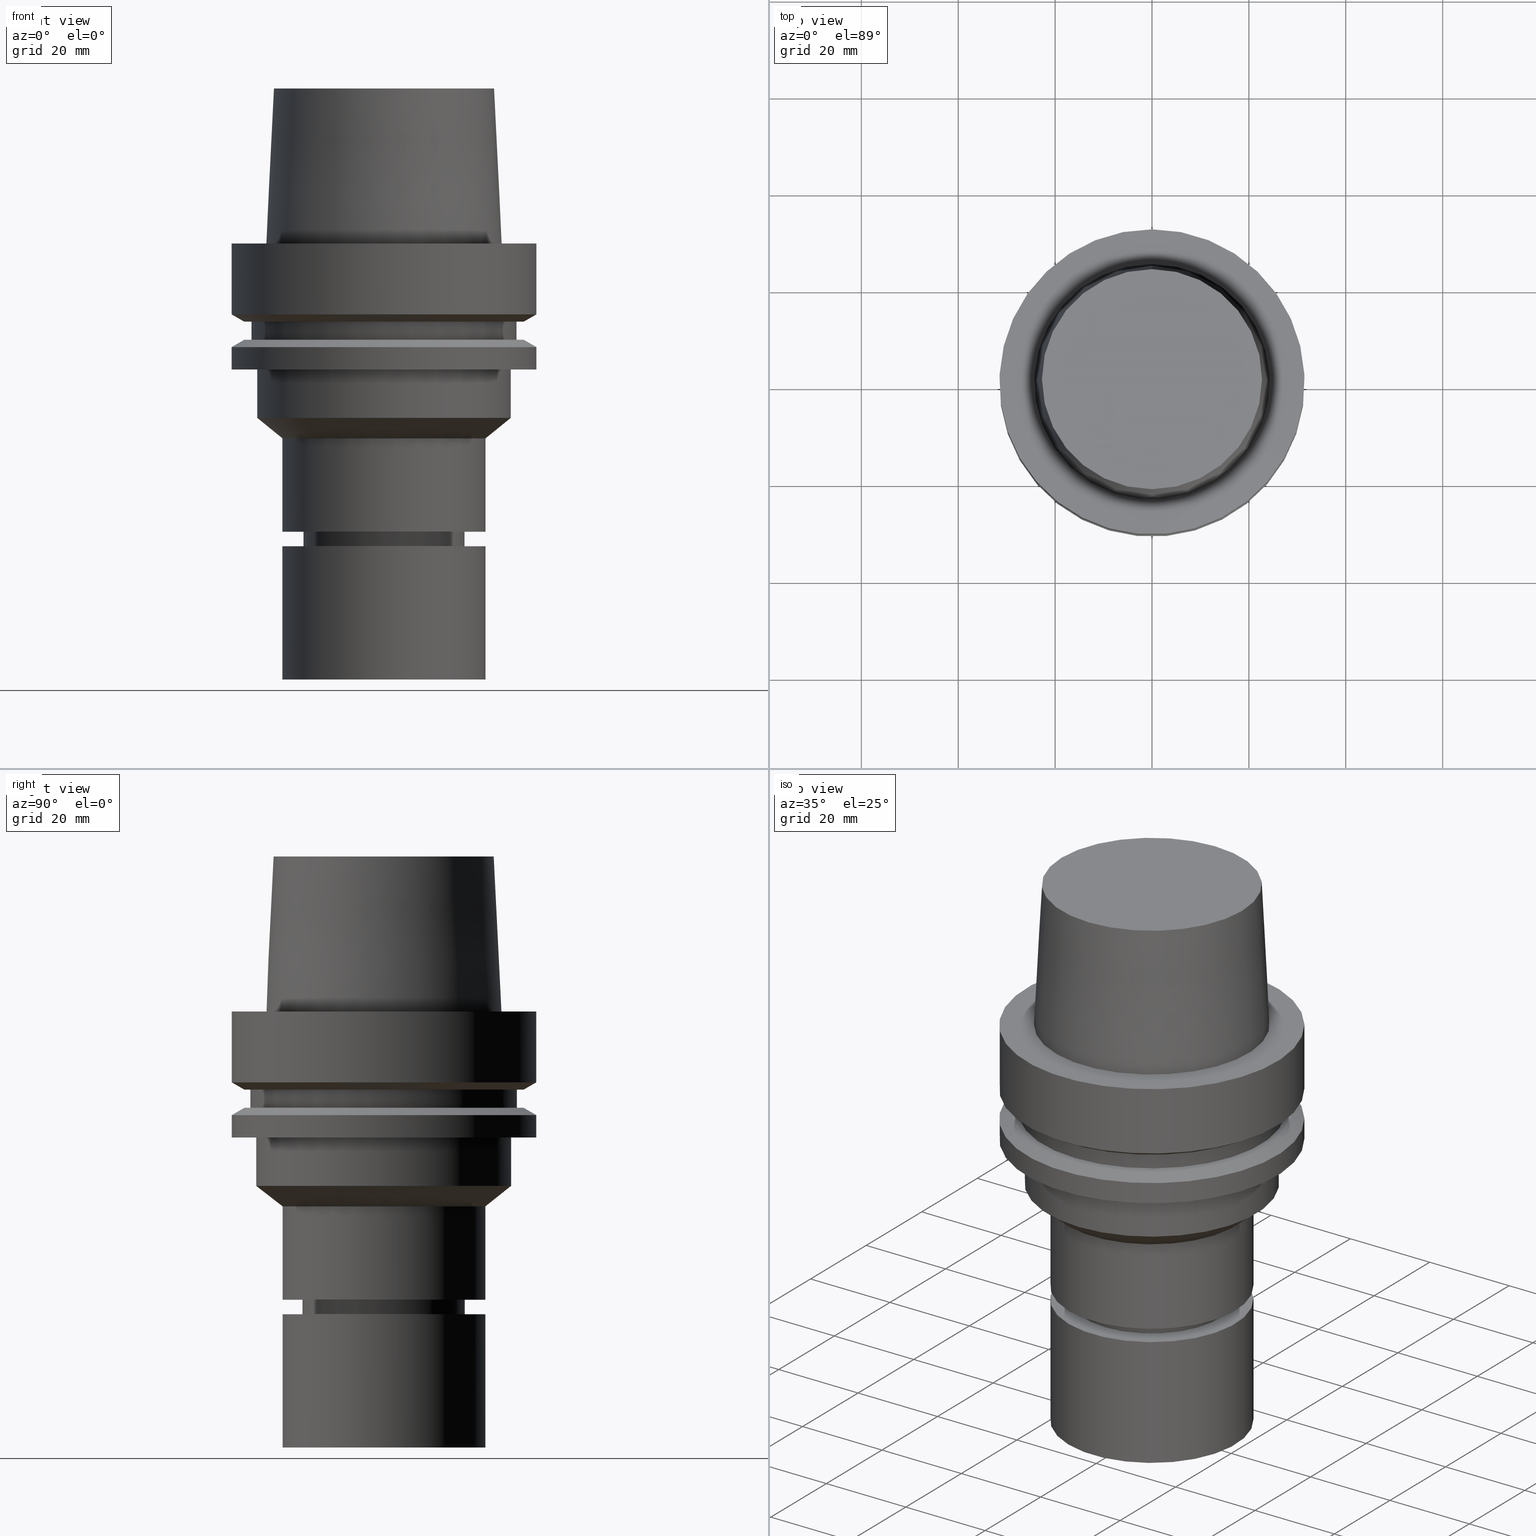
[diagram: canonical four-view strip — front | top / right | iso, engineering-drawing reading convention]
A machine part, canonical four-view strip (front | top / right | iso — engineering-drawing reading convention). The complete STEP part file that produces these views, byte-faithful:
ISO-10303-21;
HEADER;
FILE_DESCRIPTION((''),'1');
FILE_NAME('V:/90_\X2\53D65F9730C730FC30BF\X0\/00_\X2\6DE18DEF30C730FC30BF\X0\/ALL/HSK-BKUS\X2\52A05DE556F3\X0\_201801/HSK-A63-MEGAER/HSK-A63-MEGAER25-90NL.stp','2018-02-01T02:51:05',(''),(''),'Spatial Interop R21 SP3','Kubotek KeyCreator 2011 V10.0.2 (22737)',' ');
FILE_SCHEMA(('automotive_design'));
ENDSEC;
DATA;
#1=MECHANICAL_DESIGN_GEOMETRIC_PRESENTATION_REPRESENTATION(' ',(#14,#15,#16,#17,#18,#19,#20,#21,#22,#23,#24,#25,#26,#27,#28,#29,#30,#31,#32,#33,#34,#35,#36,#37,#38,#39,#40,#41,#42,#43,#44,#45,#46,#47,#48,#49,#50,#51,#52,#53,#54,#55,#56,#57,#58,#59),#10);
#2=PRODUCT_DEFINITION_CONTEXT('',#60,'design');
#3=APPLICATION_PROTOCOL_DEFINITION('INTERNATIONAL STANDARD','automotive_design',1994,#60);
#4=PRODUCT_CATEGORY_RELATIONSHIP('NONE','NONE',#61,#62);
#5=SHAPE_DEFINITION_REPRESENTATION(#63,#64);
#6=PRODUCT_DEFINITION_CONTEXT('',#65,'design');
#7=APPLICATION_PROTOCOL_DEFINITION('INTERNATIONAL STANDARD','automotive_design',1994,#65);
#8=PRODUCT_CATEGORY_RELATIONSHIP('NONE','NONE',#66,#67);
#9=SHAPE_DEFINITION_REPRESENTATION(#68,#69);
#10= (GEOMETRIC_REPRESENTATION_CONTEXT(3)GLOBAL_UNCERTAINTY_ASSIGNED_CONTEXT((#72))GLOBAL_UNIT_ASSIGNED_CONTEXT((#74,#75,#76))REPRESENTATION_CONTEXT('NONE','WORKSPACE'));
#14=STYLED_ITEM('',(#78,#79),#80);
#15=STYLED_ITEM('',(#81),#82);
#16=STYLED_ITEM('',(#83),#84);
#17=STYLED_ITEM('',(#85,#86),#87);
#18=STYLED_ITEM('',(#88,#89),#90);
#19=STYLED_ITEM('',(#91),#92);
#20=STYLED_ITEM('',(#93),#94);
#21=STYLED_ITEM('',(#95,#96),#97);
#22=STYLED_ITEM('',(#98,#99),#100);
#23=STYLED_ITEM('',(#101,#102),#103);
#24=STYLED_ITEM('',(#104,#105),#106);
#25=STYLED_ITEM('',(#107),#108);
#26=STYLED_ITEM('',(#109),#110);
#27=STYLED_ITEM('',(#111,#112),#113);
#28=STYLED_ITEM('',(#114,#115),#116);
#29=STYLED_ITEM('',(#117,#118),#119);
#30=STYLED_ITEM('',(#120,#121),#122);
#31=STYLED_ITEM('',(#123),#124);
#32=STYLED_ITEM('',(#125,#126),#127);
#33=STYLED_ITEM('',(#128),#129);
#34=STYLED_ITEM('',(#130),#131);
#35=STYLED_ITEM('',(#132),#133);
#36=STYLED_ITEM('',(#134,#135),#136);
#37=STYLED_ITEM('',(#137,#138),#139);
#38=STYLED_ITEM('',(#140,#141),#142);
#39=STYLED_ITEM('',(#143,#144),#145);
#40=STYLED_ITEM('',(#146),#147);
#41=STYLED_ITEM('',(#148),#149);
#42=STYLED_ITEM('',(#150,#151),#152);
#43=STYLED_ITEM('',(#153,#154),#155);
#44=STYLED_ITEM('',(#156,#157),#158);
#45=STYLED_ITEM('',(#159),#160);
#46=STYLED_ITEM('',(#161,#162),#163);
#47=STYLED_ITEM('',(#164,#165),#166);
#48=STYLED_ITEM('',(#167,#168),#169);
#49=STYLED_ITEM('',(#170),#171);
#50=STYLED_ITEM('',(#172),#173);
#51=STYLED_ITEM('',(#174),#175);
#52=STYLED_ITEM('',(#176,#177),#178);
#53=STYLED_ITEM('',(#179),#180);
#54=STYLED_ITEM('',(#181),#182);
#55=STYLED_ITEM('',(#183,#184),#185);
#56=STYLED_ITEM('',(#186),#187);
#57=STYLED_ITEM('',(#188),#189);
#58=STYLED_ITEM('',(#190),#191);
#59=STYLED_ITEM('',(#192,#193),#194);
#60=APPLICATION_CONTEXT(' ');
#61=PRODUCT_CATEGORY('part','NONE');
#62=PRODUCT_RELATED_PRODUCT_CATEGORY('detail',' ',(#195));
#63=PRODUCT_DEFINITION_SHAPE('NONE','NONE',#196);
#64=ADVANCED_BREP_SHAPE_REPRESENTATION('Unnamed[1]',(#136,#197),#10);
#65=APPLICATION_CONTEXT(' ');
#66=PRODUCT_CATEGORY('part','NONE');
#67=PRODUCT_RELATED_PRODUCT_CATEGORY('detail',' ',(#198));
#68=PRODUCT_DEFINITION_SHAPE('NONE','NONE',#199);
#69=ADVANCED_BREP_SHAPE_REPRESENTATION('Unnamed[1]',(#152,#200),#10);
#72=UNCERTAINTY_MEASURE_WITH_UNIT(LENGTH_MEASURE(1.0E-006),#74,'','');
#74= (CONVERSION_BASED_UNIT('MILLIMETRE',#203)LENGTH_UNIT()NAMED_UNIT(#206));
#75= (NAMED_UNIT(#208)PLANE_ANGLE_UNIT()SI_UNIT($,.RADIAN.));
#76= (NAMED_UNIT(#208)SOLID_ANGLE_UNIT()SI_UNIT($,.STERADIAN.));
#78=PRESENTATION_STYLE_ASSIGNMENT((#214));
#79=PRESENTATION_STYLE_ASSIGNMENT((#215));
#80=ADVANCED_FACE('Unnamed[1]',(#216,#217),#218,.T.);
#81=PRESENTATION_STYLE_ASSIGNMENT((#219));
#82=EDGE_CURVE('Unnamed[1]',#220,#220,#221,.T.);
#83=PRESENTATION_STYLE_ASSIGNMENT((#222));
#84=EDGE_CURVE('Unnamed[1]',#223,#223,#224,.T.);
#85=PRESENTATION_STYLE_ASSIGNMENT((#225));
#86=PRESENTATION_STYLE_ASSIGNMENT((#226));
#87=ADVANCED_FACE('Unnamed[1]',(#227,#228),#229,.T.);
#88=PRESENTATION_STYLE_ASSIGNMENT((#230));
#89=PRESENTATION_STYLE_ASSIGNMENT((#231));
#90=ADVANCED_FACE('Unnamed[1]',(#232),#233,.T.);
#91=PRESENTATION_STYLE_ASSIGNMENT((#234));
#92=EDGE_CURVE('Unnamed[1]',#235,#235,#236,.T.);
#93=PRESENTATION_STYLE_ASSIGNMENT((#237));
#94=EDGE_CURVE('Unnamed[1]',#238,#238,#239,.T.);
#95=PRESENTATION_STYLE_ASSIGNMENT((#240));
#96=PRESENTATION_STYLE_ASSIGNMENT((#241));
#97=ADVANCED_FACE('Unnamed[1]',(#242,#243),#244,.T.);
#98=PRESENTATION_STYLE_ASSIGNMENT((#245));
#99=PRESENTATION_STYLE_ASSIGNMENT((#246));
#100=ADVANCED_FACE('Unnamed[1]',(#247,#248),#249,.T.);
#101=PRESENTATION_STYLE_ASSIGNMENT((#250));
#102=PRESENTATION_STYLE_ASSIGNMENT((#251));
#103=ADVANCED_FACE('Unnamed[1]',(#252,#253),#254,.T.);
#104=PRESENTATION_STYLE_ASSIGNMENT((#255));
#105=PRESENTATION_STYLE_ASSIGNMENT((#256));
#106=ADVANCED_FACE('Unnamed[1]',(#257,#258),#259,.T.);
#107=PRESENTATION_STYLE_ASSIGNMENT((#260));
#108=EDGE_CURVE('Unnamed[1]',#261,#261,#262,.T.);
#109=PRESENTATION_STYLE_ASSIGNMENT((#263));
#110=EDGE_CURVE('Unnamed[1]',#264,#264,#265,.T.);
#111=PRESENTATION_STYLE_ASSIGNMENT((#266));
#112=PRESENTATION_STYLE_ASSIGNMENT((#267));
#113=ADVANCED_FACE('Unnamed[1]',(#268,#269),#270,.T.);
#114=PRESENTATION_STYLE_ASSIGNMENT((#271));
#115=PRESENTATION_STYLE_ASSIGNMENT((#272));
#116=ADVANCED_FACE('Unnamed[1]',(#273,#274),#275,.T.);
#117=PRESENTATION_STYLE_ASSIGNMENT((#276));
#118=PRESENTATION_STYLE_ASSIGNMENT((#277));
#119=ADVANCED_FACE('Unnamed[1]',(#278,#279),#280,.T.);
#120=PRESENTATION_STYLE_ASSIGNMENT((#281));
#121=PRESENTATION_STYLE_ASSIGNMENT((#282));
#122=ADVANCED_FACE('Unnamed[1]',(#283,#284),#285,.T.);
#123=PRESENTATION_STYLE_ASSIGNMENT((#286));
#124=EDGE_CURVE('Unnamed[1]',#287,#287,#288,.T.);
#125=PRESENTATION_STYLE_ASSIGNMENT((#289));
#126=PRESENTATION_STYLE_ASSIGNMENT((#290));
#127=ADVANCED_FACE('Unnamed[1]',(#291,#292),#293,.T.);
#128=PRESENTATION_STYLE_ASSIGNMENT((#294));
#129=EDGE_CURVE('Unnamed[1]',#295,#295,#296,.T.);
#130=PRESENTATION_STYLE_ASSIGNMENT((#297));
#131=EDGE_CURVE('Unnamed[1]',#298,#298,#299,.T.);
#132=PRESENTATION_STYLE_ASSIGNMENT((#300));
#133=EDGE_CURVE('Unnamed[1]',#301,#301,#302,.T.);
#134=PRESENTATION_STYLE_ASSIGNMENT((#303));
#135=PRESENTATION_STYLE_ASSIGNMENT((#304));
#136=MANIFOLD_SOLID_BREP('Unnamed[1]',#305);
#137=PRESENTATION_STYLE_ASSIGNMENT((#306));
#138=PRESENTATION_STYLE_ASSIGNMENT((#307));
#139=ADVANCED_FACE('Unnamed[1]',(#308),#309,.T.);
#140=PRESENTATION_STYLE_ASSIGNMENT((#310));
#141=PRESENTATION_STYLE_ASSIGNMENT((#311));
#142=ADVANCED_FACE('Unnamed[1]',(#312,#313),#314,.T.);
#143=PRESENTATION_STYLE_ASSIGNMENT((#315));
#144=PRESENTATION_STYLE_ASSIGNMENT((#316));
#145=ADVANCED_FACE('Unnamed[1]',(#317,#318),#319,.T.);
#146=PRESENTATION_STYLE_ASSIGNMENT((#320));
#147=EDGE_CURVE('Unnamed[1]',#321,#321,#322,.T.);
#148=PRESENTATION_STYLE_ASSIGNMENT((#323));
#149=EDGE_CURVE('Unnamed[1]',#324,#324,#325,.T.);
#150=PRESENTATION_STYLE_ASSIGNMENT((#326));
#151=PRESENTATION_STYLE_ASSIGNMENT((#327));
#152=MANIFOLD_SOLID_BREP('Unnamed[1]',#328);
#153=PRESENTATION_STYLE_ASSIGNMENT((#329));
#154=PRESENTATION_STYLE_ASSIGNMENT((#330));
#155=ADVANCED_FACE('Unnamed[1]',(#331,#332),#333,.T.);
#156=PRESENTATION_STYLE_ASSIGNMENT((#334));
#157=PRESENTATION_STYLE_ASSIGNMENT((#335));
#158=ADVANCED_FACE('Unnamed[1]',(#336,#337),#338,.T.);
#159=PRESENTATION_STYLE_ASSIGNMENT((#339));
#160=EDGE_CURVE('Unnamed[1]',#340,#340,#341,.T.);
#161=PRESENTATION_STYLE_ASSIGNMENT((#342));
#162=PRESENTATION_STYLE_ASSIGNMENT((#343));
#163=ADVANCED_FACE('Unnamed[1]',(#344),#345,.T.);
#164=PRESENTATION_STYLE_ASSIGNMENT((#346));
#165=PRESENTATION_STYLE_ASSIGNMENT((#347));
#166=ADVANCED_FACE('Unnamed[1]',(#348,#349),#350,.T.);
#167=PRESENTATION_STYLE_ASSIGNMENT((#351));
#168=PRESENTATION_STYLE_ASSIGNMENT((#352));
#169=ADVANCED_FACE('Unnamed[1]',(#353,#354),#355,.T.);
#170=PRESENTATION_STYLE_ASSIGNMENT((#356));
#171=EDGE_CURVE('Unnamed[1]',#357,#357,#358,.T.);
#172=PRESENTATION_STYLE_ASSIGNMENT((#359));
#173=EDGE_CURVE('Unnamed[1]',#360,#360,#361,.T.);
#174=PRESENTATION_STYLE_ASSIGNMENT((#362));
#175=EDGE_CURVE('Unnamed[1]',#363,#363,#364,.T.);
#176=PRESENTATION_STYLE_ASSIGNMENT((#365));
#177=PRESENTATION_STYLE_ASSIGNMENT((#366));
#178=ADVANCED_FACE('Unnamed[1]',(#367,#368),#369,.T.);
#179=PRESENTATION_STYLE_ASSIGNMENT((#370));
#180=EDGE_CURVE('Unnamed[1]',#371,#371,#372,.T.);
#181=PRESENTATION_STYLE_ASSIGNMENT((#373));
#182=EDGE_CURVE('Unnamed[1]',#374,#374,#375,.T.);
#183=PRESENTATION_STYLE_ASSIGNMENT((#376));
#184=PRESENTATION_STYLE_ASSIGNMENT((#377));
#185=ADVANCED_FACE('Unnamed[1]',(#378,#379),#380,.T.);
#186=PRESENTATION_STYLE_ASSIGNMENT((#381));
#187=EDGE_CURVE('Unnamed[1]',#382,#382,#383,.T.);
#188=PRESENTATION_STYLE_ASSIGNMENT((#384));
#189=EDGE_CURVE('Unnamed[1]',#385,#385,#386,.T.);
#190=PRESENTATION_STYLE_ASSIGNMENT((#387));
#191=EDGE_CURVE('Unnamed[1]',#388,#388,#389,.T.);
#192=PRESENTATION_STYLE_ASSIGNMENT((#390));
#193=PRESENTATION_STYLE_ASSIGNMENT((#391));
#194=ADVANCED_FACE('Unnamed[1]',(#392),#393,.T.);
#195=PRODUCT('Unnamed[1]','Unnamed[1]','PART-Unnamed[1]-DESC',(#394));
#196=PRODUCT_DEFINITION('NONE','NONE',#395,#2);
#197=AXIS2_PLACEMENT_3D('',#396,#397,#398);
#198=PRODUCT('Unnamed[1]','Unnamed[1]','PART-Unnamed[1]-DESC',(#399));
#199=PRODUCT_DEFINITION('NONE','NONE',#400,#6);
#200=AXIS2_PLACEMENT_3D('',#401,#402,#403);
#203=LENGTH_MEASURE_WITH_UNIT(LENGTH_MEASURE(1.0),#404);
#206=DIMENSIONAL_EXPONENTS(1.0,0.0,0.0,0.0,0.0,0.0,0.0);
#208=DIMENSIONAL_EXPONENTS(0.0,0.0,0.0,0.0,0.0,0.0,0.0);
#214=SURFACE_STYLE_USAGE(.BOTH.,#405);
#215=CURVE_STYLE('',#406,POSITIVE_LENGTH_MEASURE(1000.0),#407);
#216=FACE_BOUND('',#408,.T.);
#217=FACE_BOUND('',#409,.T.);
#218=CONICAL_SURFACE('',#410,23.65,0.898977866671859);
#219=CURVE_STYLE('',#411,POSITIVE_LENGTH_MEASURE(1000.0),#412);
#220=VERTEX_POINT('',#413);
#221=CIRCLE('',#414,16.7499999999907);
#222=CURVE_STYLE('',#415,POSITIVE_LENGTH_MEASURE(1000.0),#416);
#223=VERTEX_POINT('',#417);
#224=CIRCLE('',#418,21.0);
#225=SURFACE_STYLE_USAGE(.BOTH.,#419);
#226=CURVE_STYLE('',#420,POSITIVE_LENGTH_MEASURE(1000.0),#421);
#227=FACE_BOUND('',#422,.T.);
#228=FACE_BOUND('',#423,.T.);
#229=CONICAL_SURFACE('',#424,16.3750000000008,1.04719755120064);
#230=SURFACE_STYLE_USAGE(.BOTH.,#425);
#231=CURVE_STYLE('',#426,POSITIVE_LENGTH_MEASURE(1000.0),#427);
#232=FACE_OUTER_BOUND('',#428,.T.);
#233=PLANE('',#429);
#234=CURVE_STYLE('',#430,POSITIVE_LENGTH_MEASURE(1000.0),#431);
#235=VERTEX_POINT('',#432);
#236=CIRCLE('',#433,26.3);
#237=CURVE_STYLE('',#434,POSITIVE_LENGTH_MEASURE(1000.0),#435);
#238=VERTEX_POINT('',#436);
#239=CIRCLE('',#437,27.4999999999989);
#240=SURFACE_STYLE_USAGE(.BOTH.,#438);
#241=CURVE_STYLE('',#439,POSITIVE_LENGTH_MEASURE(1000.0),#440);
#242=FACE_BOUND('',#441,.T.);
#243=FACE_OUTER_BOUND('',#442,.T.);
#244=PLANE('',#443);
#245=SURFACE_STYLE_USAGE(.BOTH.,#444);
#246=CURVE_STYLE('',#445,POSITIVE_LENGTH_MEASURE(1000.0),#446);
#247=FACE_BOUND('',#447,.T.);
#248=FACE_BOUND('',#448,.T.);
#249=CYLINDRICAL_SURFACE('',#449,21.0);
#250=SURFACE_STYLE_USAGE(.BOTH.,#450);
#251=CURVE_STYLE('',#451,POSITIVE_LENGTH_MEASURE(1000.0),#452);
#252=FACE_BOUND('',#453,.T.);
#253=FACE_BOUND('',#454,.T.);
#254=CONICAL_SURFACE('',#455,30.1987976320959,1.04719755119657);
#255=SURFACE_STYLE_USAGE(.BOTH.,#456);
#256=CURVE_STYLE('',#457,POSITIVE_LENGTH_MEASURE(1000.0),#458);
#257=FACE_BOUND('',#459,.T.);
#258=FACE_OUTER_BOUND('',#460,.T.);
#259=PLANE('',#461);
#260=CURVE_STYLE('',#462,POSITIVE_LENGTH_MEASURE(1000.0),#463);
#261=VERTEX_POINT('',#464);
#262=CIRCLE('',#465,14.9000000000006);
#263=CURVE_STYLE('',#466,POSITIVE_LENGTH_MEASURE(1000.0),#467);
#264=VERTEX_POINT('',#468);
#265=CIRCLE('',#469,21.0000000000001);
#266=SURFACE_STYLE_USAGE(.BOTH.,#470);
#267=CURVE_STYLE('',#471,POSITIVE_LENGTH_MEASURE(1000.0),#472);
#268=FACE_BOUND('',#473,.T.);
#269=FACE_BOUND('',#474,.T.);
#270=CYLINDRICAL_SURFACE('',#475,21.0000000000001);
#271=SURFACE_STYLE_USAGE(.BOTH.,#476);
#272=CURVE_STYLE('',#477,POSITIVE_LENGTH_MEASURE(1000.0),#478);
#273=FACE_BOUND('',#479,.T.);
#274=FACE_BOUND('',#480,.T.);
#275=CONICAL_SURFACE('',#481,15.4500000000003,0.523598775598041);
#276=SURFACE_STYLE_USAGE(.BOTH.,#482);
#277=CURVE_STYLE('',#483,POSITIVE_LENGTH_MEASURE(1000.0),#484);
#278=FACE_OUTER_BOUND('',#485,.T.);
#279=FACE_BOUND('',#486,.T.);
#280=PLANE('',#487);
#281=SURFACE_STYLE_USAGE(.BOTH.,#488);
#282=CURVE_STYLE('',#489,POSITIVE_LENGTH_MEASURE(1000.0),#490);
#283=FACE_OUTER_BOUND('',#491,.T.);
#284=FACE_BOUND('',#492,.T.);
#285=PLANE('',#493);
#286=CURVE_STYLE('',#494,POSITIVE_LENGTH_MEASURE(1000.0),#495);
#287=VERTEX_POINT('',#496);
#288=CIRCLE('',#497,31.5);
#289=SURFACE_STYLE_USAGE(.BOTH.,#498);
#290=CURVE_STYLE('',#499,POSITIVE_LENGTH_MEASURE(1000.0),#500);
#291=FACE_BOUND('',#501,.T.);
#292=FACE_BOUND('',#502,.T.);
#293=CYLINDRICAL_SURFACE('',#503,27.4999999999994);
#294=CURVE_STYLE('',#504,POSITIVE_LENGTH_MEASURE(1000.0),#505);
#295=VERTEX_POINT('',#506);
#296=CIRCLE('',#507,27.5);
#297=CURVE_STYLE('',#508,POSITIVE_LENGTH_MEASURE(1000.0),#509);
#298=VERTEX_POINT('',#510);
#299=CIRCLE('',#511,28.8975952641919);
#300=CURVE_STYLE('',#512,POSITIVE_LENGTH_MEASURE(1000.0),#513);
#301=VERTEX_POINT('',#514);
#302=CIRCLE('',#515,31.5);
#303=SURFACE_STYLE_USAGE(.BOTH.,#516);
#304=CURVE_STYLE('',#517,POSITIVE_LENGTH_MEASURE(1000.0),#518);
#305=CLOSED_SHELL('',(#163,#116,#178,#87,#166,#185,#113,#80,#155,#122,#169,#158,#106,#127,#119,#103,#142,#97,#145,#90));
#306=SURFACE_STYLE_USAGE(.BOTH.,#519);
#307=CURVE_STYLE('',#520,POSITIVE_LENGTH_MEASURE(1000.0),#521);
#308=FACE_OUTER_BOUND('',#522,.T.);
#309=PLANE('',#523);
#310=SURFACE_STYLE_USAGE(.BOTH.,#524);
#311=CURVE_STYLE('',#525,POSITIVE_LENGTH_MEASURE(1000.0),#526);
#312=FACE_BOUND('',#527,.T.);
#313=FACE_BOUND('',#528,.T.);
#314=CYLINDRICAL_SURFACE('',#529,31.5);
#315=SURFACE_STYLE_USAGE(.BOTH.,#530);
#316=CURVE_STYLE('',#531,POSITIVE_LENGTH_MEASURE(1000.0),#532);
#317=FACE_BOUND('',#533,.T.);
#318=FACE_BOUND('',#534,.T.);
#319=CONICAL_SURFACE('',#535,23.515,0.0499583957219433);
#320=CURVE_STYLE('',#536,POSITIVE_LENGTH_MEASURE(1000.0),#537);
#321=VERTEX_POINT('',#538);
#322=CIRCLE('',#539,31.4999999999998);
#323=CURVE_STYLE('',#540,POSITIVE_LENGTH_MEASURE(1000.0),#541);
#324=VERTEX_POINT('',#542);
#325=CIRCLE('',#543,21.0);
#326=SURFACE_STYLE_USAGE(.BOTH.,#544);
#327=CURVE_STYLE('',#545,POSITIVE_LENGTH_MEASURE(1000.0),#546);
#328=CLOSED_SHELL('',(#194,#139,#100));
#329=SURFACE_STYLE_USAGE(.BOTH.,#547);
#330=CURVE_STYLE('',#548,POSITIVE_LENGTH_MEASURE(1000.0),#549);
#331=FACE_BOUND('',#550,.T.);
#332=FACE_BOUND('',#551,.T.);
#333=CYLINDRICAL_SURFACE('',#552,26.3);
#334=SURFACE_STYLE_USAGE(.BOTH.,#553);
#335=CURVE_STYLE('',#554,POSITIVE_LENGTH_MEASURE(1000.0),#555);
#336=FACE_BOUND('',#556,.T.);
#337=FACE_BOUND('',#557,.T.);
#338=CONICAL_SURFACE('',#558,30.1987976320959,1.04719755119657);
#339=CURVE_STYLE('',#559,POSITIVE_LENGTH_MEASURE(1000.0),#560);
#340=VERTEX_POINT('',#561);
#341=CIRCLE('',#562,16.7500000000017);
#342=SURFACE_STYLE_USAGE(.BOTH.,#563);
#343=CURVE_STYLE('',#564,POSITIVE_LENGTH_MEASURE(1000.0),#565);
#344=FACE_OUTER_BOUND('',#566,.T.);
#345=PLANE('',#567);
#346=SURFACE_STYLE_USAGE(.BOTH.,#568);
#347=CURVE_STYLE('',#569,POSITIVE_LENGTH_MEASURE(1000.0),#570);
#348=FACE_BOUND('',#571,.T.);
#349=FACE_BOUND('',#572,.T.);
#350=CYLINDRICAL_SURFACE('',#573,16.7499999999962);
#351=SURFACE_STYLE_USAGE(.BOTH.,#574);
#352=CURVE_STYLE('',#575,POSITIVE_LENGTH_MEASURE(1000.0),#576);
#353=FACE_BOUND('',#577,.T.);
#354=FACE_BOUND('',#578,.T.);
#355=CYLINDRICAL_SURFACE('',#579,31.4999999999999);
#356=CURVE_STYLE('',#580,POSITIVE_LENGTH_MEASURE(1000.0),#581);
#357=VERTEX_POINT('',#582);
#358=CIRCLE('',#583,21.0);
#359=CURVE_STYLE('',#584,POSITIVE_LENGTH_MEASURE(1000.0),#585);
#360=VERTEX_POINT('',#586);
#361=CIRCLE('',#587,26.3);
#362=CURVE_STYLE('',#588,POSITIVE_LENGTH_MEASURE(1000.0),#589);
#363=VERTEX_POINT('',#590);
#364=CIRCLE('',#591,28.8975952641919);
#365=SURFACE_STYLE_USAGE(.BOTH.,#592);
#366=CURVE_STYLE('',#593,POSITIVE_LENGTH_MEASURE(1000.0),#594);
#367=FACE_BOUND('',#595,.T.);
#368=FACE_BOUND('',#596,.T.);
#369=CYLINDRICAL_SURFACE('',#597,16.0);
#370=CURVE_STYLE('',#598,POSITIVE_LENGTH_MEASURE(1000.0),#599);
#371=VERTEX_POINT('',#600);
#372=CIRCLE('',#601,31.5000000000001);
#373=CURVE_STYLE('',#602,POSITIVE_LENGTH_MEASURE(1000.0),#603);
#374=VERTEX_POINT('',#604);
#375=CIRCLE('',#605,24.315);
#376=SURFACE_STYLE_USAGE(.BOTH.,#606);
#377=CURVE_STYLE('',#607,POSITIVE_LENGTH_MEASURE(1000.0),#608);
#378=FACE_OUTER_BOUND('',#609,.T.);
#379=FACE_BOUND('',#610,.T.);
#380=PLANE('',#611);
#381=CURVE_STYLE('',#612,POSITIVE_LENGTH_MEASURE(1000.0),#613);
#382=VERTEX_POINT('',#614);
#383=CIRCLE('',#615,22.715);
#384=CURVE_STYLE('',#616,POSITIVE_LENGTH_MEASURE(1000.0),#617);
#385=VERTEX_POINT('',#618);
#386=CIRCLE('',#619,16.0);
#387=CURVE_STYLE('',#620,POSITIVE_LENGTH_MEASURE(1000.0),#621);
#388=VERTEX_POINT('',#622);
#389=CIRCLE('',#623,16.0);
#390=SURFACE_STYLE_USAGE(.BOTH.,#624);
#391=CURVE_STYLE('',#625,POSITIVE_LENGTH_MEASURE(1000.0),#626);
#392=FACE_OUTER_BOUND('',#627,.T.);
#393=PLANE('',#628);
#394=PRODUCT_CONTEXT('',#60,'mechanical');
#395=PRODUCT_DEFINITION_FORMATION_WITH_SPECIFIED_SOURCE(' ','NONE',#195,.NOT_KNOWN.);
#396=CARTESIAN_POINT('',(0.0,0.0,0.0));
#397=DIRECTION('',(0.0,0.0,1.0));
#398=DIRECTION('',(1.0,0.0,0.0));
#399=PRODUCT_CONTEXT('',#65,'mechanical');
#400=PRODUCT_DEFINITION_FORMATION_WITH_SPECIFIED_SOURCE(' ','NONE',#198,.NOT_KNOWN.);
#401=CARTESIAN_POINT('',(0.0,0.0,0.0));
#402=DIRECTION('',(0.0,0.0,1.0));
#403=DIRECTION('',(1.0,0.0,0.0));
#404= (NAMED_UNIT(#206)LENGTH_UNIT()SI_UNIT(.MILLI.,.METRE.));
#405=SURFACE_SIDE_STYLE('',(#630));
#406=DRAUGHTING_PRE_DEFINED_CURVE_FONT('continuous');
#407=COLOUR_RGB('',0.0,1.0,0.0);
#408=EDGE_LOOP('',(#631));
#409=EDGE_LOOP('',(#632));
#410=AXIS2_PLACEMENT_3D('',#633,#634,#635);
#411=DRAUGHTING_PRE_DEFINED_CURVE_FONT('continuous');
#412=COLOUR_RGB('',0.0,1.0,0.0);
#413=CARTESIAN_POINT('',(3.64332422746333E-015,16.7499999999907,-59.4999999999992));
#414=AXIS2_PLACEMENT_3D('',#636,#637,#638);
#415=DRAUGHTING_PRE_DEFINED_CURVE_FONT('continuous');
#416=COLOUR_RGB('',0.0,1.0,0.0);
#417=CARTESIAN_POINT('',(5.51091059616309E-015,21.0,-90.0));
#418=AXIS2_PLACEMENT_3D('',#639,#640,#641);
#419=SURFACE_SIDE_STYLE('',(#642));
#420=DRAUGHTING_PRE_DEFINED_CURVE_FONT('continuous');
#421=COLOUR_RGB('',0.0,1.0,0.0);
#422=EDGE_LOOP('',(#643));
#423=EDGE_LOOP('',(#644));
#424=AXIS2_PLACEMENT_3D('',#645,#646,#647);
#425=SURFACE_SIDE_STYLE('',(#648));
#426=DRAUGHTING_PRE_DEFINED_CURVE_FONT('continuous');
#427=COLOUR_RGB('',0.0,1.0,0.0);
#428=EDGE_LOOP('',(#649));
#429=AXIS2_PLACEMENT_3D('',#650,#651,#652);
#430=DRAUGHTING_PRE_DEFINED_CURVE_FONT('continuous');
#431=COLOUR_RGB('',0.0,1.0,0.0);
#432=CARTESIAN_POINT('',(1.59204083889154E-015,26.3,-25.9999999999996));
#433=AXIS2_PLACEMENT_3D('',#653,#654,#655);
#434=DRAUGHTING_PRE_DEFINED_CURVE_FONT('continuous');
#435=COLOUR_RGB('',0.0,1.0,0.0);
#436=CARTESIAN_POINT('',(1.21699275665276E-015,27.4999999999989,-19.8750000000013));
#437=AXIS2_PLACEMENT_3D('',#656,#657,#658);
#438=SURFACE_SIDE_STYLE('',(#659));
#439=DRAUGHTING_PRE_DEFINED_CURVE_FONT('continuous');
#440=COLOUR_RGB('',0.0,1.0,0.0);
#441=EDGE_LOOP('',(#660));
#442=EDGE_LOOP('',(#661));
#443=AXIS2_PLACEMENT_3D('',#662,#663,#664);
#444=SURFACE_SIDE_STYLE('',(#665));
#445=DRAUGHTING_PRE_DEFINED_CURVE_FONT('continuous');
#446=COLOUR_RGB('',0.0,1.0,0.0);
#447=EDGE_LOOP('',(#666));
#448=EDGE_LOOP('',(#667));
#449=AXIS2_PLACEMENT_3D('',#668,#669,#670);
#450=SURFACE_SIDE_STYLE('',(#671));
#451=DRAUGHTING_PRE_DEFINED_CURVE_FONT('continuous');
#452=COLOUR_RGB('',0.0,1.0,0.0);
#453=EDGE_LOOP('',(#672));
#454=EDGE_LOOP('',(#673));
#455=AXIS2_PLACEMENT_3D('',#674,#675,#676);
#456=SURFACE_SIDE_STYLE('',(#677));
#457=DRAUGHTING_PRE_DEFINED_CURVE_FONT('continuous');
#458=COLOUR_RGB('',0.0,1.0,0.0);
#459=EDGE_LOOP('',(#678));
#460=EDGE_LOOP('',(#679));
#461=AXIS2_PLACEMENT_3D('',#680,#681,#682);
#462=DRAUGHTING_PRE_DEFINED_CURVE_FONT('continuous');
#463=COLOUR_RGB('',0.0,1.0,0.0);
#464=CARTESIAN_POINT('',(4.88634072859795E-015,14.9000000000007,-79.8000000000002));
#465=AXIS2_PLACEMENT_3D('',#683,#684,#685);
#466=DRAUGHTING_PRE_DEFINED_CURVE_FONT('continuous');
#467=COLOUR_RGB('',0.0,1.0,0.0);
#468=CARTESIAN_POINT('',(3.64332422746337E-015,21.0000000000002,-59.5));
#469=AXIS2_PLACEMENT_3D('',#686,#687,#688);
#470=SURFACE_SIDE_STYLE('',(#689));
#471=DRAUGHTING_PRE_DEFINED_CURVE_FONT('continuous');
#472=COLOUR_RGB('',0.0,1.0,0.0);
#473=EDGE_LOOP('',(#690));
#474=EDGE_LOOP('',(#691));
#475=AXIS2_PLACEMENT_3D('',#692,#693,#694);
#476=SURFACE_SIDE_STYLE('',(#695));
#477=DRAUGHTING_PRE_DEFINED_CURVE_FONT('continuous');
#478=COLOUR_RGB('',0.0,1.0,0.0);
#479=EDGE_LOOP('',(#696));
#480=EDGE_LOOP('',(#697));
#481=AXIS2_PLACEMENT_3D('',#698,#699,#700);
#482=SURFACE_SIDE_STYLE('',(#701));
#483=DRAUGHTING_PRE_DEFINED_CURVE_FONT('continuous');
#484=COLOUR_RGB('',0.0,1.0,0.0);
#485=EDGE_LOOP('',(#702));
#486=EDGE_LOOP('',(#703));
#487=AXIS2_PLACEMENT_3D('',#704,#705,#706);
#488=SURFACE_SIDE_STYLE('',(#707));
#489=DRAUGHTING_PRE_DEFINED_CURVE_FONT('continuous');
#490=COLOUR_RGB('',0.0,1.0,0.0);
#491=EDGE_LOOP('',(#708));
#492=EDGE_LOOP('',(#709));
#493=AXIS2_PLACEMENT_3D('',#710,#711,#712);
#494=DRAUGHTING_PRE_DEFINED_CURVE_FONT('continuous');
#495=COLOUR_RGB('',0.0,1.0,0.0);
#496=CARTESIAN_POINT('',(1.30899429078397E-015,31.5,-21.3774990747592));
#497=AXIS2_PLACEMENT_3D('',#713,#714,#715);
#498=SURFACE_SIDE_STYLE('',(#716));
#499=DRAUGHTING_PRE_DEFINED_CURVE_FONT('continuous');
#500=COLOUR_RGB('',0.0,1.0,0.0);
#501=EDGE_LOOP('',(#717));
#502=EDGE_LOOP('',(#718));
#503=AXIS2_PLACEMENT_3D('',#719,#720,#721);
#504=DRAUGHTING_PRE_DEFINED_CURVE_FONT('continuous');
#505=COLOUR_RGB('',0.0,1.0,0.0);
#506=CARTESIAN_POINT('',(9.87371481812537E-016,27.5,-16.1249999999997));
#507=AXIS2_PLACEMENT_3D('',#722,#723,#724);
#508=DRAUGHTING_PRE_DEFINED_CURVE_FONT('continuous');
#509=COLOUR_RGB('',0.0,1.0,0.0);
#510=CARTESIAN_POINT('',(9.87371481812551E-016,28.8975952641919,-16.125));
#511=AXIS2_PLACEMENT_3D('',#725,#726,#727);
#512=DRAUGHTING_PRE_DEFINED_CURVE_FONT('continuous');
#513=COLOUR_RGB('',0.0,1.0,0.0);
#514=CARTESIAN_POINT('',(8.95369947681261E-016,31.5,-14.6225009252407));
#515=AXIS2_PLACEMENT_3D('',#728,#729,#730);
#516=SURFACE_SIDE_STYLE('',(#731));
#517=DRAUGHTING_PRE_DEFINED_CURVE_FONT('continuous');
#518=COLOUR_RGB('',0.0,1.0,0.0);
#519=SURFACE_SIDE_STYLE('',(#732));
#520=DRAUGHTING_PRE_DEFINED_CURVE_FONT('continuous');
#521=COLOUR_RGB('',0.0,1.0,0.0);
#522=EDGE_LOOP('',(#733));
#523=AXIS2_PLACEMENT_3D('',#734,#735,#736);
#524=SURFACE_SIDE_STYLE('',(#737));
#525=DRAUGHTING_PRE_DEFINED_CURVE_FONT('continuous');
#526=COLOUR_RGB('',0.0,1.0,0.0);
#527=EDGE_LOOP('',(#738));
#528=EDGE_LOOP('',(#739));
#529=AXIS2_PLACEMENT_3D('',#740,#741,#742);
#530=SURFACE_SIDE_STYLE('',(#743));
#531=DRAUGHTING_PRE_DEFINED_CURVE_FONT('continuous');
#532=COLOUR_RGB('',0.0,1.0,0.0);
#533=EDGE_LOOP('',(#744));
#534=EDGE_LOOP('',(#745));
#535=AXIS2_PLACEMENT_3D('',#746,#747,#748);
#536=DRAUGHTING_PRE_DEFINED_CURVE_FONT('continuous');
#537=COLOUR_RGB('',0.0,1.0,0.0);
#538=CARTESIAN_POINT('',(1.59204083889155E-015,31.4999999999998,-25.9999999999999));
#539=AXIS2_PLACEMENT_3D('',#749,#750,#751);
#540=DRAUGHTING_PRE_DEFINED_CURVE_FONT('continuous');
#541=COLOUR_RGB('',0.0,1.0,0.0);
#542=CARTESIAN_POINT('',(3.82702124733548E-015,21.0,-62.5));
#543=AXIS2_PLACEMENT_3D('',#752,#753,#754);
#544=SURFACE_SIDE_STYLE('',(#755));
#545=DRAUGHTING_PRE_DEFINED_CURVE_FONT('continuous');
#546=COLOUR_RGB('',0.0,1.0,0.0);
#547=SURFACE_SIDE_STYLE('',(#756));
#548=DRAUGHTING_PRE_DEFINED_CURVE_FONT('continuous');
#549=COLOUR_RGB('',0.0,1.0,0.0);
#550=EDGE_LOOP('',(#757));
#551=EDGE_LOOP('',(#758));
#552=AXIS2_PLACEMENT_3D('',#759,#760,#761);
#553=SURFACE_SIDE_STYLE('',(#762));
#554=DRAUGHTING_PRE_DEFINED_CURVE_FONT('continuous');
#555=COLOUR_RGB('',0.0,1.0,0.0);
#556=EDGE_LOOP('',(#763));
#557=EDGE_LOOP('',(#764));
#558=AXIS2_PLACEMENT_3D('',#765,#766,#767);
#559=DRAUGHTING_PRE_DEFINED_CURVE_FONT('continuous');
#560=COLOUR_RGB('',0.0,1.0,0.0);
#561=CARTESIAN_POINT('',(4.00871749225766E-015,16.7500000000017,-65.4673248654009));
#562=AXIS2_PLACEMENT_3D('',#768,#769,#770);
#563=SURFACE_SIDE_STYLE('',(#771));
#564=DRAUGHTING_PRE_DEFINED_CURVE_FONT('continuous');
#565=COLOUR_RGB('',0.0,1.0,0.0);
#566=EDGE_LOOP('',(#772));
#567=AXIS2_PLACEMENT_3D('',#773,#774,#775);
#568=SURFACE_SIDE_STYLE('',(#776));
#569=DRAUGHTING_PRE_DEFINED_CURVE_FONT('continuous');
#570=COLOUR_RGB('',0.0,1.0,0.0);
#571=EDGE_LOOP('',(#777));
#572=EDGE_LOOP('',(#778));
#573=AXIS2_PLACEMENT_3D('',#779,#780,#781);
#574=SURFACE_SIDE_STYLE('',(#782));
#575=DRAUGHTING_PRE_DEFINED_CURVE_FONT('continuous');
#576=COLOUR_RGB('',0.0,1.0,0.0);
#577=EDGE_LOOP('',(#783));
#578=EDGE_LOOP('',(#784));
#579=AXIS2_PLACEMENT_3D('',#785,#786,#787);
#580=DRAUGHTING_PRE_DEFINED_CURVE_FONT('continuous');
#581=COLOUR_RGB('',0.0,1.0,0.0);
#582=CARTESIAN_POINT('',(2.46243754655501E-015,21.0,-40.214656965085));
#583=AXIS2_PLACEMENT_3D('',#788,#789,#790);
#584=DRAUGHTING_PRE_DEFINED_CURVE_FONT('continuous');
#585=COLOUR_RGB('',0.0,1.0,0.0);
#586=CARTESIAN_POINT('',(2.20436423846528E-015,26.3,-36.0000000000007));
#587=AXIS2_PLACEMENT_3D('',#791,#792,#793);
#588=DRAUGHTING_PRE_DEFINED_CURVE_FONT('continuous');
#589=COLOUR_RGB('',0.0,1.0,0.0);
#590=CARTESIAN_POINT('',(1.21699275665268E-015,28.8975952641919,-19.875));
#591=AXIS2_PLACEMENT_3D('',#794,#795,#796);
#592=SURFACE_SIDE_STYLE('',(#797));
#593=DRAUGHTING_PRE_DEFINED_CURVE_FONT('continuous');
#594=COLOUR_RGB('',0.0,1.0,0.0);
#595=EDGE_LOOP('',(#798));
#596=EDGE_LOOP('',(#799));
#597=AXIS2_PLACEMENT_3D('',#800,#801,#802);
#598=DRAUGHTING_PRE_DEFINED_CURVE_FONT('continuous');
#599=COLOUR_RGB('',0.0,1.0,0.0);
#600=CARTESIAN_POINT('',(-3.88267476788467E-031,31.5000000000001,3.85763741731417E-015));
#601=AXIS2_PLACEMENT_3D('',#803,#804,#805);
#602=DRAUGHTING_PRE_DEFINED_CURVE_FONT('continuous');
#603=COLOUR_RGB('',0.0,1.0,0.0);
#604=CARTESIAN_POINT('',(-2.99705514225764E-031,24.315,2.97772869212679E-015));
#605=AXIS2_PLACEMENT_3D('',#806,#807,#808);
#606=SURFACE_SIDE_STYLE('',(#809));
#607=DRAUGHTING_PRE_DEFINED_CURVE_FONT('continuous');
#608=COLOUR_RGB('',0.0,1.0,0.0);
#609=EDGE_LOOP('',(#810));
#610=EDGE_LOOP('',(#811));
#611=AXIS2_PLACEMENT_3D('',#812,#813,#814);
#612=DRAUGHTING_PRE_DEFINED_CURVE_FONT('continuous');
#613=COLOUR_RGB('',0.0,1.0,0.0);
#614=CARTESIAN_POINT('',(-1.95943487863576E-015,22.715,32.0));
#615=AXIS2_PLACEMENT_3D('',#815,#816,#817);
#616=DRAUGHTING_PRE_DEFINED_CURVE_FONT('continuous');
#617=COLOUR_RGB('',0.0,1.0,0.0);
#618=CARTESIAN_POINT('',(4.76967745233821E-015,16.0,-77.8947441116744));
#619=AXIS2_PLACEMENT_3D('',#818,#819,#820);
#620=DRAUGHTING_PRE_DEFINED_CURVE_FONT('continuous');
#621=COLOUR_RGB('',0.0,1.0,0.0);
#622=CARTESIAN_POINT('',(4.03523187322559E-015,16.0,-65.9003375672901));
#623=AXIS2_PLACEMENT_3D('',#821,#822,#823);
#624=SURFACE_SIDE_STYLE('',(#824));
#625=DRAUGHTING_PRE_DEFINED_CURVE_FONT('continuous');
#626=COLOUR_RGB('',0.0,1.0,0.0);
#627=EDGE_LOOP('',(#825));
#628=AXIS2_PLACEMENT_3D('',#826,#827,#828);
#630=SURFACE_STYLE_FILL_AREA(#829);
#631=ORIENTED_EDGE('',*,*,#173,.F.);
#632=ORIENTED_EDGE('',*,*,#171,.T.);
#633=CARTESIAN_POINT('',(2.33340089251014E-015,4.66680178502028E-015,-38.1073284825428));
#634=DIRECTION('',(-6.12323399573677E-017,-1.22464679914735E-016,1.0));
#635=DIRECTION('',(-1.23259516440783E-032,1.0,1.22464679914735E-016));
#636=CARTESIAN_POINT('',(3.64332422746333E-015,7.28664845492665E-015,-59.4999999999992));
#637=DIRECTION('',(-6.12323399573677E-017,-1.22464679914735E-016,1.0));
#638=DIRECTION('',(-1.23259516440783E-032,1.0,1.22464679914735E-016));
#639=CARTESIAN_POINT('',(5.51091059616309E-015,1.10218211923262E-014,-90.0));
#640=DIRECTION('',(6.12323399573677E-017,1.22464679914735E-016,-1.0));
#641=DIRECTION('',(-1.23259516440783E-032,1.0,1.22464679914735E-016));
#642=SURFACE_STYLE_FILL_AREA(#830);
#643=ORIENTED_EDGE('',*,*,#160,.F.);
#644=ORIENTED_EDGE('',*,*,#191,.T.);
#645=CARTESIAN_POINT('',(4.02197468274162E-015,8.04394936548325E-015,-65.6838312163455));
#646=DIRECTION('',(-6.12323399573677E-017,-1.22464679914735E-016,1.0));
#647=DIRECTION('',(-1.23259516440783E-032,1.0,1.22464679914735E-016));
#648=SURFACE_STYLE_FILL_AREA(#831);
#649=ORIENTED_EDGE('',*,*,#187,.T.);
#650=CARTESIAN_POINT('',(-1.95943487863576E-015,11.3575,32.0));
#651=DIRECTION('',(-6.12323399573677E-017,9.72362339746437E-016,1.0));
#652=DIRECTION('',(5.47128686183263E-032,1.0,-9.72362339746437E-016));
#653=CARTESIAN_POINT('',(1.59204083889154E-015,3.18408167778307E-015,-25.9999999999996));
#654=DIRECTION('',(-6.12323399573677E-017,-1.22464679914735E-016,1.0));
#655=DIRECTION('',(-1.23259516440783E-032,1.0,1.22464679914735E-016));
#656=CARTESIAN_POINT('',(1.21699275665276E-015,2.43398551330552E-015,-19.8750000000013));
#657=DIRECTION('',(-6.12323399573677E-017,-1.22464679914735E-016,1.0));
#658=DIRECTION('',(-1.23259516440783E-032,1.0,1.22464679914735E-016));
#659=SURFACE_STYLE_FILL_AREA(#832);
#660=ORIENTED_EDGE('',*,*,#182,.F.);
#661=ORIENTED_EDGE('',*,*,#180,.T.);
#662=CARTESIAN_POINT('',(-3.43986495507116E-031,27.9075,3.41768305472048E-015));
#663=DIRECTION('',(-6.12323399573677E-017,-1.22464679914735E-016,1.0));
#664=DIRECTION('',(-1.23259516440783E-032,1.0,1.22464679914735E-016));
#665=SURFACE_STYLE_FILL_AREA(#833);
#666=ORIENTED_EDGE('',*,*,#84,.F.);
#667=ORIENTED_EDGE('',*,*,#149,.T.);
#668=CARTESIAN_POINT('',(4.66896592174928E-015,9.33793184349857E-015,-76.25));
#669=DIRECTION('',(6.12323399573677E-017,1.22464679914735E-016,-1.0));
#670=DIRECTION('',(-1.23259516440783E-032,1.0,1.22464679914735E-016));
#671=SURFACE_STYLE_FILL_AREA(#834);
#672=ORIENTED_EDGE('',*,*,#133,.F.);
#673=ORIENTED_EDGE('',*,*,#131,.T.);
#674=CARTESIAN_POINT('',(9.41370714746907E-016,1.88274142949381E-015,-15.3737504626203));
#675=DIRECTION('',(-6.12323399573677E-017,-1.22464679914735E-016,1.0));
#676=DIRECTION('',(-1.23259516440783E-032,1.0,1.22464679914735E-016));
#677=SURFACE_STYLE_FILL_AREA(#835);
#678=ORIENTED_EDGE('',*,*,#94,.F.);
#679=ORIENTED_EDGE('',*,*,#175,.T.);
#680=CARTESIAN_POINT('',(1.21699275665272E-015,28.1987976320954,-19.8750000000006));
#681=DIRECTION('',(-6.12323399573677E-017,-9.58463617675421E-013,1.0));
#682=DIRECTION('',(-5.86937972270006E-029,1.0,9.58463617675421E-013));
#683=CARTESIAN_POINT('',(4.88634072859795E-015,9.7726814571959E-015,-79.8000000000002));
#684=DIRECTION('',(-6.12323399573677E-017,-1.22464679914735E-016,1.0));
#685=DIRECTION('',(-1.23259516440783E-032,1.0,1.22464679914735E-016));
#686=CARTESIAN_POINT('',(3.64332422746337E-015,7.28664845492674E-015,-59.5));
#687=DIRECTION('',(-6.12323399573677E-017,-1.22464679914735E-016,1.0));
#688=DIRECTION('',(-1.23259516440783E-032,1.0,1.22464679914735E-016));
#689=SURFACE_STYLE_FILL_AREA(#836);
#690=ORIENTED_EDGE('',*,*,#171,.F.);
#691=ORIENTED_EDGE('',*,*,#110,.T.);
#692=CARTESIAN_POINT('',(3.05288088700919E-015,6.10576177401838E-015,-49.8573284825425));
#693=DIRECTION('',(-6.12323399573677E-017,-1.22464679914735E-016,1.0));
#694=DIRECTION('',(-1.23259516440783E-032,1.0,1.22464679914735E-016));
#695=SURFACE_STYLE_FILL_AREA(#837);
#696=ORIENTED_EDGE('',*,*,#189,.F.);
#697=ORIENTED_EDGE('',*,*,#108,.T.);
#698=CARTESIAN_POINT('',(4.82800909046808E-015,9.65601818093616E-015,-78.8473720558373));
#699=DIRECTION('',(-6.12323399573677E-017,-1.22464679914735E-016,1.0));
#700=DIRECTION('',(-1.23259516440783E-032,1.0,1.22464679914735E-016));
#701=SURFACE_STYLE_FILL_AREA(#838);
#702=ORIENTED_EDGE('',*,*,#131,.F.);
#703=ORIENTED_EDGE('',*,*,#129,.T.);
#704=CARTESIAN_POINT('',(9.87371481812544E-016,28.1987976320959,-16.1249999999999));
#705=DIRECTION('',(6.12323399573677E-017,-1.65108768595307E-013,-1.0));
#706=DIRECTION('',(-1.01051690958394E-029,-1.0,1.65108768595307E-013));
#707=SURFACE_STYLE_FILL_AREA(#839);
#708=ORIENTED_EDGE('',*,*,#147,.F.);
#709=ORIENTED_EDGE('',*,*,#92,.T.);
#710=CARTESIAN_POINT('',(1.59204083889154E-015,28.8999999999999,-25.9999999999998));
#711=DIRECTION('',(6.12323399573677E-017,-4.97521696570939E-014,-1.0));
#712=DIRECTION('',(-3.04161461332904E-030,-1.0,4.97521696570939E-014));
#713=CARTESIAN_POINT('',(1.30899429078397E-015,2.61798858156794E-015,-21.3774990747592));
#714=DIRECTION('',(-6.12323399573677E-017,-1.22464679914735E-016,1.0));
#715=DIRECTION('',(-1.23259516440783E-032,1.0,1.22464679914735E-016));
#716=SURFACE_STYLE_FILL_AREA(#840);
#717=ORIENTED_EDGE('',*,*,#129,.F.);
#718=ORIENTED_EDGE('',*,*,#94,.T.);
#719=CARTESIAN_POINT('',(1.10218211923265E-015,2.2043642384653E-015,-18.0000000000005));
#720=DIRECTION('',(-6.12323399573677E-017,-1.22464679914735E-016,1.0));
#721=DIRECTION('',(-1.23259516440783E-032,1.0,1.22464679914735E-016));
#722=CARTESIAN_POINT('',(9.87371481812538E-016,1.97474296362508E-015,-16.1249999999997));
#723=DIRECTION('',(-6.12323399573677E-017,-1.22464679914735E-016,1.0));
#724=DIRECTION('',(-1.23259516440783E-032,1.0,1.22464679914735E-016));
#725=CARTESIAN_POINT('',(9.87371481812552E-016,1.9747429636251E-015,-16.125));
#726=DIRECTION('',(-6.12323399573677E-017,-1.22464679914735E-016,1.0));
#727=DIRECTION('',(-1.23259516440783E-032,1.0,1.22464679914735E-016));
#728=CARTESIAN_POINT('',(8.95369947681262E-016,1.79073989536252E-015,-14.6225009252407));
#729=DIRECTION('',(-6.12323399573677E-017,-1.22464679914735E-016,1.0));
#730=DIRECTION('',(-1.23259516440783E-032,1.0,1.22464679914735E-016));
#731=SURFACE_STYLE_FILL_AREA(#841);
#732=SURFACE_STYLE_FILL_AREA(#842);
#733=ORIENTED_EDGE('',*,*,#149,.F.);
#734=CARTESIAN_POINT('',(3.82702124733548E-015,10.5,-62.5));
#735=DIRECTION('',(-6.12323399573677E-017,-1.22464679914735E-016,1.0));
#736=DIRECTION('',(1.23259516440783E-032,-1.0,-1.22464679914735E-016));
#737=SURFACE_STYLE_FILL_AREA(#843);
#738=ORIENTED_EDGE('',*,*,#180,.F.);
#739=ORIENTED_EDGE('',*,*,#133,.T.);
#740=CARTESIAN_POINT('',(4.47684973840631E-016,8.95369947681262E-016,-7.31125046262035));
#741=DIRECTION('',(-6.12323399573677E-017,-1.22464679914735E-016,1.0));
#742=DIRECTION('',(-1.23259516440783E-032,1.0,1.22464679914735E-016));
#743=SURFACE_STYLE_FILL_AREA(#844);
#744=ORIENTED_EDGE('',*,*,#187,.F.);
#745=ORIENTED_EDGE('',*,*,#182,.T.);
#746=CARTESIAN_POINT('',(-9.79717439317882E-016,-1.95943487863576E-015,16.0));
#747=DIRECTION('',(6.12323399573677E-017,1.22464679914735E-016,-1.0));
#748=DIRECTION('',(-1.23259516440783E-032,1.0,1.22464679914735E-016));
#749=CARTESIAN_POINT('',(1.59204083889155E-015,3.1840816777831E-015,-25.9999999999999));
#750=DIRECTION('',(-6.12323399573676E-017,-1.22464679914735E-016,1.0));
#751=DIRECTION('',(-1.23259516440783E-032,1.0,1.22464679914735E-016));
#752=CARTESIAN_POINT('',(3.82702124733548E-015,7.65404249467096E-015,-62.5));
#753=DIRECTION('',(6.12323399573677E-017,1.22464679914735E-016,-1.0));
#754=DIRECTION('',(-1.23259516440783E-032,1.0,1.22464679914735E-016));
#755=SURFACE_STYLE_FILL_AREA(#845);
#756=SURFACE_STYLE_FILL_AREA(#846);
#757=ORIENTED_EDGE('',*,*,#92,.F.);
#758=ORIENTED_EDGE('',*,*,#173,.T.);
#759=CARTESIAN_POINT('',(1.89820253867841E-015,3.79640507735681E-015,-31.0000000000002));
#760=DIRECTION('',(-6.12323399573677E-017,-1.22464679914735E-016,1.0));
#761=DIRECTION('',(-1.23259516440783E-032,1.0,1.22464679914735E-016));
#762=SURFACE_STYLE_FILL_AREA(#847);
#763=ORIENTED_EDGE('',*,*,#175,.F.);
#764=ORIENTED_EDGE('',*,*,#124,.T.);
#765=CARTESIAN_POINT('',(1.26299352371833E-015,2.52598704743665E-015,-20.6262495373796));
#766=DIRECTION('',(6.12323399573677E-017,1.22464679914735E-016,-1.0));
#767=DIRECTION('',(-1.23259516440783E-032,1.0,1.22464679914735E-016));
#768=CARTESIAN_POINT('',(4.00871749225766E-015,8.01743498451531E-015,-65.4673248654009));
#769=DIRECTION('',(-6.12323399573677E-017,-1.22464679914735E-016,1.0));
#770=DIRECTION('',(-1.23259516440783E-032,1.0,1.22464679914735E-016));
#771=SURFACE_STYLE_FILL_AREA(#848);
#772=ORIENTED_EDGE('',*,*,#108,.F.);
#773=CARTESIAN_POINT('',(4.88634072859794E-015,7.45000000000033,-79.8));
#774=DIRECTION('',(6.12323399573677E-017,-2.75362458396048E-014,-1.0));
#775=DIRECTION('',(-1.68128161366956E-030,-1.0,2.75362458396048E-014));
#776=SURFACE_STYLE_FILL_AREA(#849);
#777=ORIENTED_EDGE('',*,*,#82,.F.);
#778=ORIENTED_EDGE('',*,*,#160,.T.);
#779=CARTESIAN_POINT('',(3.82602085986049E-015,7.65204171972099E-015,-62.4836624327001));
#780=DIRECTION('',(-6.12323399573676E-017,-1.22464679914735E-016,1.0));
#781=DIRECTION('',(-1.23259516440783E-032,1.0,1.22464679914735E-016));
#782=SURFACE_STYLE_FILL_AREA(#850);
#783=ORIENTED_EDGE('',*,*,#124,.F.);
#784=ORIENTED_EDGE('',*,*,#147,.T.);
#785=CARTESIAN_POINT('',(1.45051756483776E-015,2.90103512967552E-015,-23.6887495373796));
#786=DIRECTION('',(-6.12323399573677E-017,-1.22464679914735E-016,1.0));
#787=DIRECTION('',(-1.23259516440783E-032,1.0,1.22464679914735E-016));
#788=CARTESIAN_POINT('',(2.46243754655501E-015,4.92487509311001E-015,-40.214656965085));
#789=DIRECTION('',(-6.12323399573677E-017,-1.22464679914735E-016,1.0));
#790=DIRECTION('',(-1.23259516440783E-032,1.0,1.22464679914735E-016));
#791=CARTESIAN_POINT('',(2.20436423846528E-015,4.40872847693056E-015,-36.0000000000007));
#792=DIRECTION('',(-6.12323399573677E-017,-1.22464679914735E-016,1.0));
#793=DIRECTION('',(-1.23259516440783E-032,1.0,1.22464679914735E-016));
#794=CARTESIAN_POINT('',(1.21699275665268E-015,2.43398551330536E-015,-19.875));
#795=DIRECTION('',(-6.12323399573677E-017,-1.22464679914735E-016,1.0));
#796=DIRECTION('',(-1.23259516440783E-032,1.0,1.22464679914735E-016));
#797=SURFACE_STYLE_FILL_AREA(#851);
#798=ORIENTED_EDGE('',*,*,#191,.F.);
#799=ORIENTED_EDGE('',*,*,#189,.T.);
#800=CARTESIAN_POINT('',(4.4024546627819E-015,8.8049093255638E-015,-71.8975408394822));
#801=DIRECTION('',(-6.12323399573677E-017,-1.22464679914735E-016,1.0));
#802=DIRECTION('',(-1.23259516440783E-032,1.0,1.22464679914735E-016));
#803=CARTESIAN_POINT('',(0.0,0.0,0.0));
#804=DIRECTION('',(-6.12323399573677E-017,-1.22464679914735E-016,1.0));
#805=DIRECTION('',(-1.23259516440783E-032,1.0,1.22464679914735E-016));
#806=CARTESIAN_POINT('',(0.0,0.0,0.0));
#807=DIRECTION('',(-6.12323399573677E-017,-1.22464679914735E-016,1.0));
#808=DIRECTION('',(-1.23259516440783E-032,1.0,1.22464679914735E-016));
#809=SURFACE_STYLE_FILL_AREA(#852);
#810=ORIENTED_EDGE('',*,*,#110,.F.);
#811=ORIENTED_EDGE('',*,*,#82,.T.);
#812=CARTESIAN_POINT('',(3.64332422746335E-015,18.8749999999954,-59.4999999999996));
#813=DIRECTION('',(6.12323399573677E-017,-1.73751522423348E-013,-1.0));
#814=DIRECTION('',(-1.06343851364059E-029,-1.0,1.73751522423348E-013));
#815=CARTESIAN_POINT('',(-1.95943487863576E-015,-3.91886975727153E-015,32.0));
#816=DIRECTION('',(-6.12323399573676E-017,-1.22464679914735E-016,1.0));
#817=DIRECTION('',(-1.23259516440783E-032,1.0,1.22464679914735E-016));
#818=CARTESIAN_POINT('',(4.76967745233821E-015,9.53935490467641E-015,-77.8947441116744));
#819=DIRECTION('',(-6.12323399573677E-017,-1.22464679914735E-016,1.0));
#820=DIRECTION('',(-1.23259516440783E-032,1.0,1.22464679914735E-016));
#821=CARTESIAN_POINT('',(4.03523187322559E-015,8.07046374645118E-015,-65.9003375672901));
#822=DIRECTION('',(-6.12323399573677E-017,-1.22464679914735E-016,1.0));
#823=DIRECTION('',(-1.23259516440783E-032,1.0,1.22464679914735E-016));
#824=SURFACE_STYLE_FILL_AREA(#853);
#825=ORIENTED_EDGE('',*,*,#84,.T.);
#826=CARTESIAN_POINT('',(5.51091059616309E-015,10.5,-90.0));
#827=DIRECTION('',(6.12323399573677E-017,1.22464679914735E-016,-1.0));
#828=DIRECTION('',(-1.23259516440783E-032,1.0,1.22464679914735E-016));
#829=FILL_AREA_STYLE('',(#854));
#830=FILL_AREA_STYLE('',(#855));
#831=FILL_AREA_STYLE('',(#856));
#832=FILL_AREA_STYLE('',(#857));
#833=FILL_AREA_STYLE('',(#858));
#834=FILL_AREA_STYLE('',(#859));
#835=FILL_AREA_STYLE('',(#860));
#836=FILL_AREA_STYLE('',(#861));
#837=FILL_AREA_STYLE('',(#862));
#838=FILL_AREA_STYLE('',(#863));
#839=FILL_AREA_STYLE('',(#864));
#840=FILL_AREA_STYLE('',(#865));
#841=FILL_AREA_STYLE('',(#866));
#842=FILL_AREA_STYLE('',(#867));
#843=FILL_AREA_STYLE('',(#868));
#844=FILL_AREA_STYLE('',(#869));
#845=FILL_AREA_STYLE('',(#870));
#846=FILL_AREA_STYLE('',(#871));
#847=FILL_AREA_STYLE('',(#872));
#848=FILL_AREA_STYLE('',(#873));
#849=FILL_AREA_STYLE('',(#874));
#850=FILL_AREA_STYLE('',(#875));
#851=FILL_AREA_STYLE('',(#876));
#852=FILL_AREA_STYLE('',(#877));
#853=FILL_AREA_STYLE('',(#878));
#854=FILL_AREA_STYLE_COLOUR('',#879);
#855=FILL_AREA_STYLE_COLOUR('',#880);
#856=FILL_AREA_STYLE_COLOUR('',#881);
#857=FILL_AREA_STYLE_COLOUR('',#882);
#858=FILL_AREA_STYLE_COLOUR('',#883);
#859=FILL_AREA_STYLE_COLOUR('',#884);
#860=FILL_AREA_STYLE_COLOUR('',#885);
#861=FILL_AREA_STYLE_COLOUR('',#886);
#862=FILL_AREA_STYLE_COLOUR('',#887);
#863=FILL_AREA_STYLE_COLOUR('',#888);
#864=FILL_AREA_STYLE_COLOUR('',#889);
#865=FILL_AREA_STYLE_COLOUR('',#890);
#866=FILL_AREA_STYLE_COLOUR('',#891);
#867=FILL_AREA_STYLE_COLOUR('',#892);
#868=FILL_AREA_STYLE_COLOUR('',#893);
#869=FILL_AREA_STYLE_COLOUR('',#894);
#870=FILL_AREA_STYLE_COLOUR('',#895);
#871=FILL_AREA_STYLE_COLOUR('',#896);
#872=FILL_AREA_STYLE_COLOUR('',#897);
#873=FILL_AREA_STYLE_COLOUR('',#898);
#874=FILL_AREA_STYLE_COLOUR('',#899);
#875=FILL_AREA_STYLE_COLOUR('',#900);
#876=FILL_AREA_STYLE_COLOUR('',#901);
#877=FILL_AREA_STYLE_COLOUR('',#902);
#878=FILL_AREA_STYLE_COLOUR('',#903);
#879=COLOUR_RGB('',0.0,1.0,0.0);
#880=COLOUR_RGB('',0.0,1.0,0.0);
#881=COLOUR_RGB('',0.0,1.0,0.0);
#882=COLOUR_RGB('',0.0,1.0,0.0);
#883=COLOUR_RGB('',0.0,1.0,0.0);
#884=COLOUR_RGB('',0.0,1.0,0.0);
#885=COLOUR_RGB('',0.0,1.0,0.0);
#886=COLOUR_RGB('',0.0,1.0,0.0);
#887=COLOUR_RGB('',0.0,1.0,0.0);
#888=COLOUR_RGB('',0.0,1.0,0.0);
#889=COLOUR_RGB('',0.0,1.0,0.0);
#890=COLOUR_RGB('',0.0,1.0,0.0);
#891=COLOUR_RGB('',0.0,1.0,0.0);
#892=COLOUR_RGB('',0.0,1.0,0.0);
#893=COLOUR_RGB('',0.0,1.0,0.0);
#894=COLOUR_RGB('',0.0,1.0,0.0);
#895=COLOUR_RGB('',0.0,1.0,0.0);
#896=COLOUR_RGB('',0.0,1.0,0.0);
#897=COLOUR_RGB('',0.0,1.0,0.0);
#898=COLOUR_RGB('',0.0,1.0,0.0);
#899=COLOUR_RGB('',0.0,1.0,0.0);
#900=COLOUR_RGB('',0.0,1.0,0.0);
#901=COLOUR_RGB('',0.0,1.0,0.0);
#902=COLOUR_RGB('',0.0,1.0,0.0);
#903=COLOUR_RGB('',0.0,1.0,0.0);
ENDSEC;
END-ISO-10303-21;
